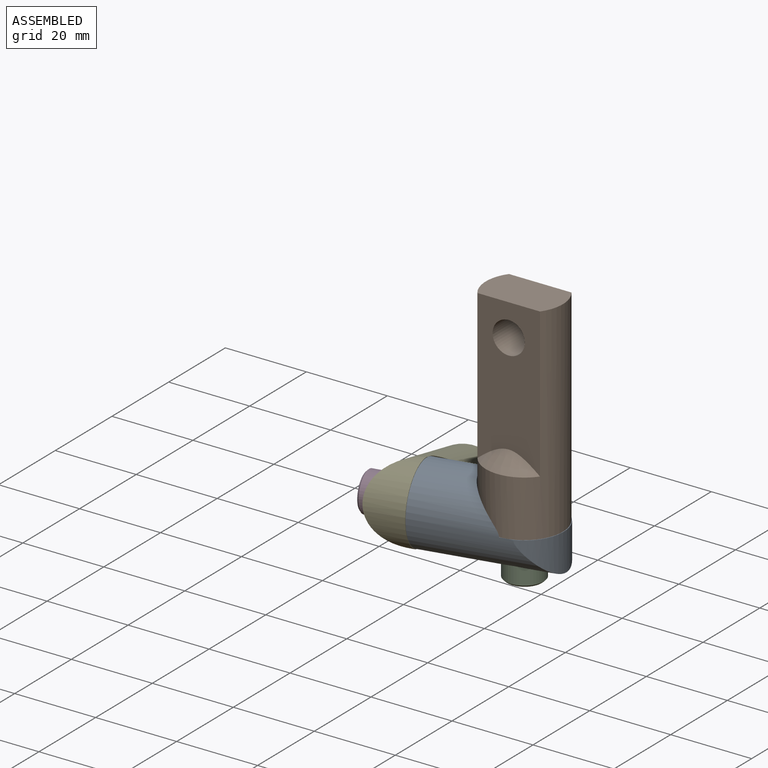
[diagram: assembled view]
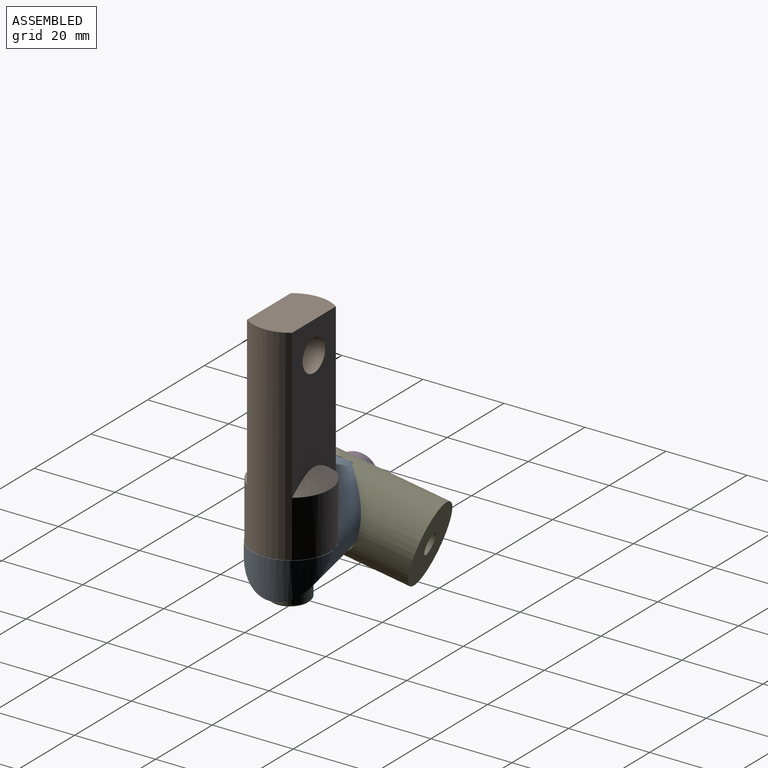
[diagram: assembled view, second angle]
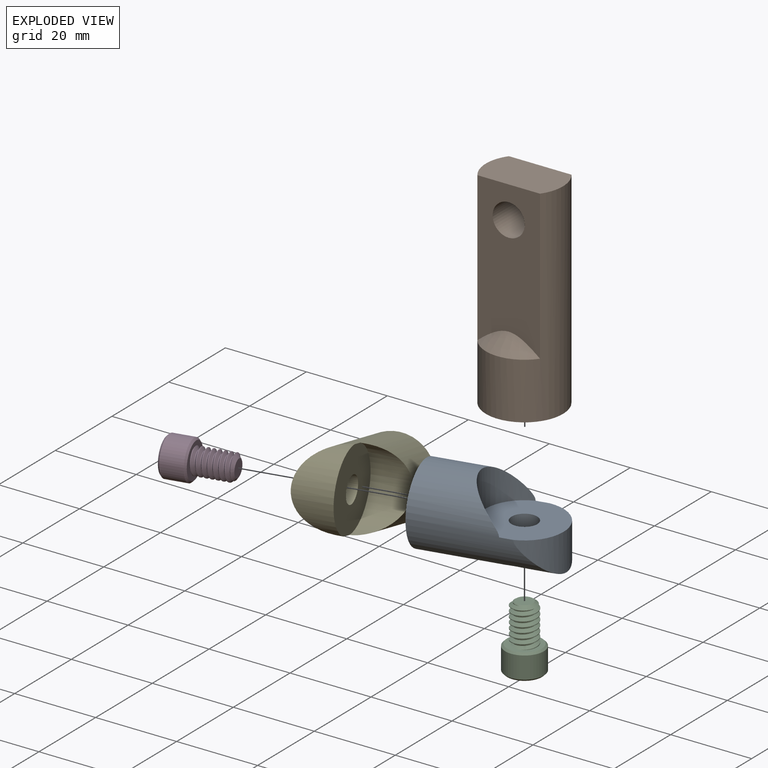
[diagram: exploded view]
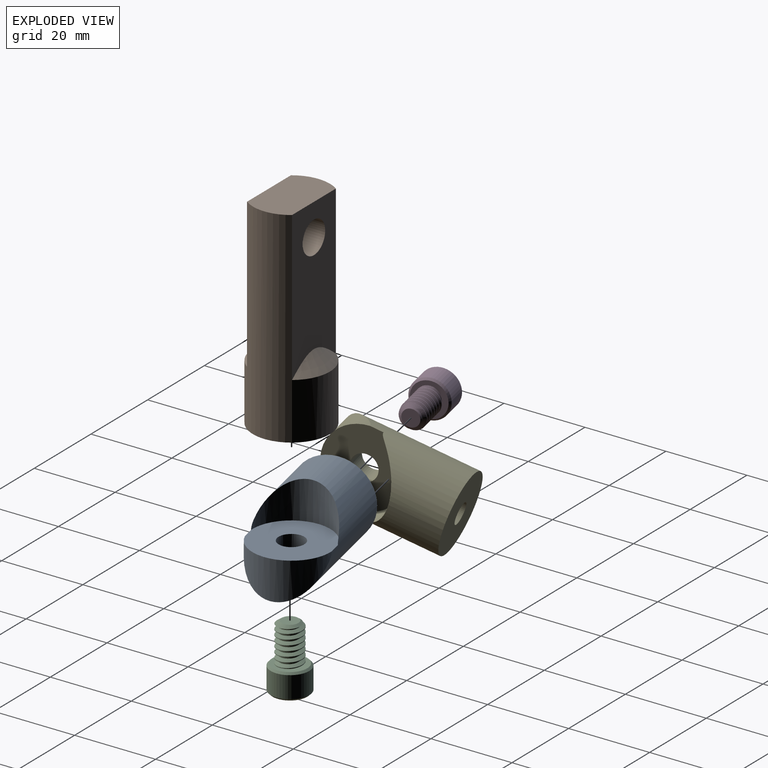
[diagram: exploded view, second angle]
ASSEMBLY  parts=5 mates=4
PART A: 10 faces, bbox 19.1x19.1x31.8 mm
  f0: cylinder r=3.17mm len=6.35mm, axis (-1,0,0), area 126.7mm2, adj f4,f9
  f1: cylinder r=9.53mm len=31.75mm, axis (0,0,-1), area 1238.1mm2, adj f2,f3,f4,f5,f8
  f2: plane 19.05x19.05mm, normal (0,0,-1), area 264.6mm2, adj f1,f6
  f3: cylinder r=9.65mm len=19.05mm, axis (-1,0,0), area 177.3mm2, adj f1,f4
  f4: plane 19.3x19.05mm, normal (-1,0,0), area 260.5mm2, adj f0,f1,f3,f5
  f5: cylinder r=9.65mm len=19.05mm, axis (-1,0,0), area 177.3mm2, adj f1,f4
  f6: cylinder r=2.55mm len=9.53mm, axis (0,0,-1), area 152.8mm2, adj f2,f7
  f7: plane 5.11x5.11mm, normal (0,0,-1), area 20.5mm2, adj f6
  f8: cylinder r=5.08mm len=10.16mm, axis (1,0,0), area 78.4mm2, adj f1,f9
  f9: plane 10.16x10.16mm, normal (1,0,0), area 49.4mm2, adj f0,f8
PART B: 10 faces, bbox 50.8x19.1x19.1 mm
  f0: cylinder r=9.53mm len=50.8mm, axis (-1,0,0), area 1710mm2, adj f1,f2,f3,f4,f6,f7
  f1: plane 19.05x11.11mm, normal (-1,0,0), area 199mm2, adj f0,f3,f4
  f2: plane 19.05x19.05mm, normal (1,0,0), area 264.6mm2, adj f0,f8
  f3: plane 36.83x15.47mm, normal (0,1,0), area 481.7mm2, adj f0,f1,f5,f6
  f4: plane 36.83x15.47mm, normal (0,-1,0), area 481.7mm2, adj f0,f1,f5,f7
  f5: cylinder r=3.97mm len=11.11mm, axis (0,-1,0), area 277.1mm2, adj f3,f4
  f6: cone r=4.45mm half-angle=45deg, axis (1,0,0), area 60.8mm2, adj f0,f3
  f7: cone r=4.45mm half-angle=45deg, axis (1,0,0), area 60.8mm2, adj f0,f4
  f8: cylinder r=2.55mm len=12.7mm, axis (1,0,0), area 203.7mm2, adj f2,f9
  f9: plane 5.11x5.11mm, normal (1,0,0), area 20.5mm2, adj f8
PART C: 54 faces, bbox 10.6x10.6x17.3 mm
  f0: plane 5.5x4.76mm, normal (0,0,-1), area 19.6mm2, adj f1,f49,f50,f51,f52,f53
  f1: plane 4.61x3.42mm, normal (-0.5,0.87,0), area 9.2mm2, adj f0,f2,f49,f53
  f2: revolved ~2.38x1.38mm, area 0mm2, adj f1,f3
  f3: plane 8.58x8.58mm, normal (0,0,-1), area 34mm2, adj f2,f4,f44,f45,f46,f47,f48
  f4: revolved ~9.53x9.53mm, area 19.1mm2, adj f3,f5
  f5: revolved ~9.53x9.53mm, area 161.5mm2, adj f4,f6
  f6: revolved ~9.53x9.53mm, area 19.1mm2, adj f5,f7
  f7: plane 9.07x9.07mm, normal (0,0,1), area 33.5mm2, adj f6,f8,f41,f42,f43
  f8: revolved ~3.18x3.18mm, area 0.6mm2, adj f7,f9,f41,f43
  f9: revolved ~6.35x3.18mm, area 1.6mm2, adj f8,f10,f41,f43
  f10: revolved ~6.35x3.18mm, area 1.6mm2, adj f9,f11,f41,f43
  f11: revolved ~6.35x3.18mm, area 1.6mm2, adj f10,f12,f41,f43
  f12: revolved ~6.35x3.18mm, area 1.6mm2, adj f11,f13,f41,f43
  f13: revolved ~6.35x3.18mm, area 1.6mm2, adj f12,f14,f41,f43
  f14: revolved ~6.35x3.18mm, area 1.6mm2, adj f13,f15,f41,f43
  f15: revolved ~6.35x3.18mm, area 1.6mm2, adj f14,f16,f41,f43
  f16: revolved ~6.35x3.18mm, area 1.6mm2, adj f15,f17,f41,f43
  f17: revolved ~6.35x3.18mm, area 1.6mm2, adj f16,f18,f41,f43
  f18: revolved ~6.35x3.18mm, area 1.6mm2, adj f17,f19,f41,f43
  f19: revolved ~6.35x3.18mm, area 1.6mm2, adj f18,f20,f41,f43
  f20: revolved ~6.35x3.18mm, area 1.6mm2, adj f19,f21,f41,f43
  f21: revolved ~6.35x3.18mm, area 1.6mm2, adj f20,f22,f41,f43
  f22: revolved ~3.8x3.17mm, area 0.7mm2, adj f21,f23,f41,f43
  f23: revolved ~6.35x3.18mm, area 7.1mm2, adj f22,f24,f39,f40,f41,f43
  f24: revolved ~2.34x2.11mm, area 0.4mm2, adj f23,f25,f41,f43
  f25: revolved ~4.7x2.35mm, area 1.2mm2, adj f24,f26,f41,f43
  f26: revolved ~4.7x2.35mm, area 1.2mm2, adj f25,f27,f41,f43
  f27: revolved ~4.7x2.35mm, area 1.2mm2, adj f26,f28,f41,f43
  f28: revolved ~4.7x2.35mm, area 1.2mm2, adj f27,f29,f41,f43
  f29: revolved ~4.7x2.35mm, area 1.2mm2, adj f28,f30,f41,f43
  f30: revolved ~4.7x2.35mm, area 1.2mm2, adj f29,f31,f41,f43
  f31: revolved ~4.7x2.35mm, area 1.2mm2, adj f30,f32,f41,f43
  f32: revolved ~4.7x2.35mm, area 1.2mm2, adj f31,f33,f41,f43
  f33: revolved ~4.7x2.35mm, area 1.2mm2, adj f32,f34,f41,f43
  f34: revolved ~4.7x2.35mm, area 1.2mm2, adj f33,f35,f41,f43
  f35: revolved ~4.7x2.35mm, area 1.2mm2, adj f34,f36,f41,f43
  f36: revolved ~4.7x2.35mm, area 1.2mm2, adj f35,f37,f41,f43
  f37: revolved ~4.7x2.35mm, area 1.2mm2, adj f36,f38,f41,f43
  f38: revolved ~4.7x2.35mm, area 1.2mm2, adj f37,f41,f42,f43
  f39: revolved ~5.91x2.96mm, area 5.7mm2, adj f23,f40,f41
  f40: plane 4.19x4.19mm, normal (0,0,1), area 13.8mm2, adj f23,f39
  f41: bspline ~10.42x7.33mm, area 118.8mm2, adj f7,f8,f9,f10,f11,f12,f13,f14
  f42: revolved ~2.35x2.35mm, area 0.4mm2, adj f7,f38,f41,f43
  f43: bspline ~9.9x7.33mm, area 118mm2, adj f7,f8,f9,f10,f11,f12,f13,f14
  f44: revolved ~2.38x1.38mm, area 0mm2, adj f3,f53
  f45: revolved ~2.75x0.69mm, area 0.7mm2, adj f3,f52
  f46: revolved ~2.38x1.38mm, area 0mm2, adj f3,f51
  f47: revolved ~2.38x1.38mm, area 0mm2, adj f3,f50
  f48: revolved ~2.75x0.37mm, area 0mm2, adj f3,f49
  f49: plane 4.61x3.79mm, normal (-1,0,0), area 9.1mm2, adj f0,f1,f48,f50
  f50: plane 4.61x3.42mm, normal (-0.5,-0.87,0), area 9.2mm2, adj f0,f47,f49,f51
  f51: plane 4.61x3.42mm, normal (0.5,-0.87,0), area 9.2mm2, adj f0,f46,f50,f52
  f52: plane 3.84x3.02mm, normal (1,0,0), area 9.2mm2, adj f0,f45,f51,f53
  f53: plane 4.61x3.42mm, normal (0.5,0.87,0), area 9.2mm2, adj f0,f1,f44,f52
PART D: same geometry as C
PART E: same geometry as A
PLACE A rot(axis=(-0.11,0.99,0.11),90.6deg) t=(-21.6,0.9,-42.86)mm
PLACE B rot(axis=(0,1,0),90deg) t=(0,5.56,7.94)mm
PLACE C rot(axis=(0,0,1),16.9deg) t=(0.19,5.33,-39.69)mm
PLACE D rot(axis=(-0.69,0.41,-0.59),122.8deg) t=(-18.45,1.35,-42.51)mm
PLACE E rot(axis=(-0.06,0.59,-0.8),170.2deg) t=(-26.06,21.58,-49.28)mm
MATE planar C.f7 <-> A.f0  axis (0,0,1) through (0,5.56,-49.21)mm
MATE revolute B.f0 <-> A.f0  axis (0,0,-1) through (0,5.56,-42.86)mm
MATE revolute A.f1 <-> E.f0  axis (-0.98,-0.21,0) through (-21.6,0.9,-42.86)mm
MATE planar D.f7 <-> E.f9  axis (0.98,0.21,0) through (-27.77,-0.63,-42.8)mm
